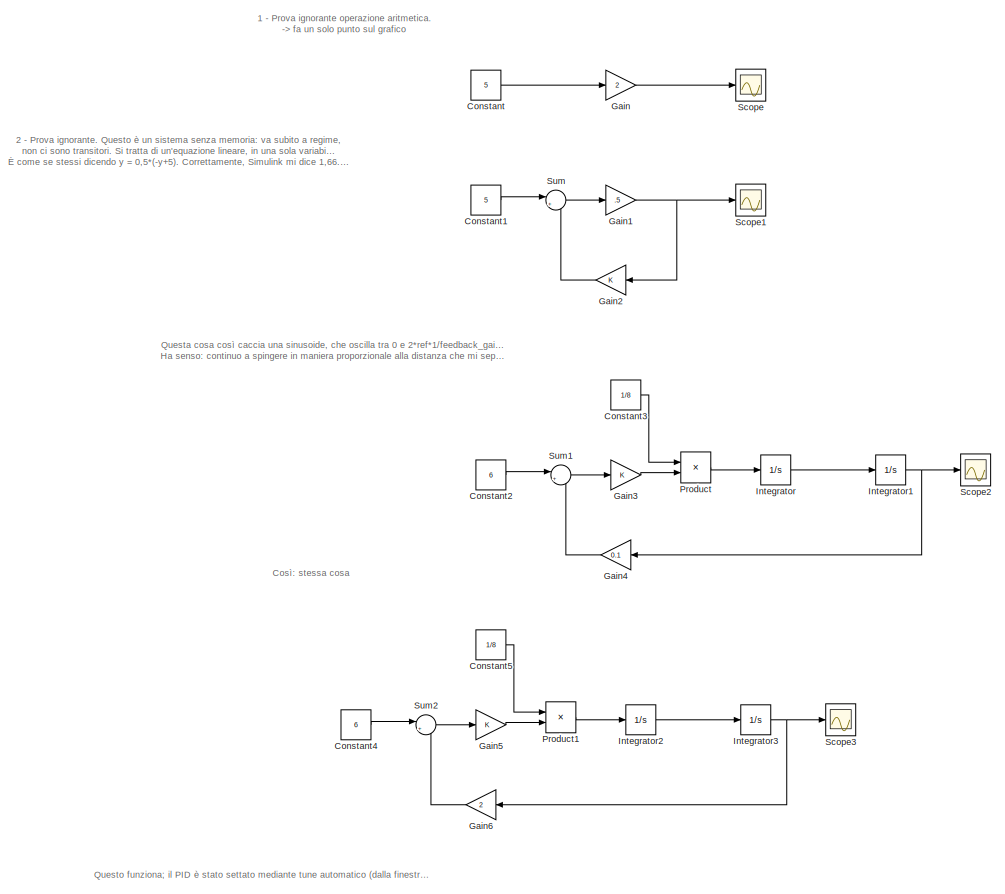
[diagram: root canvas - part 1/17, top center region]
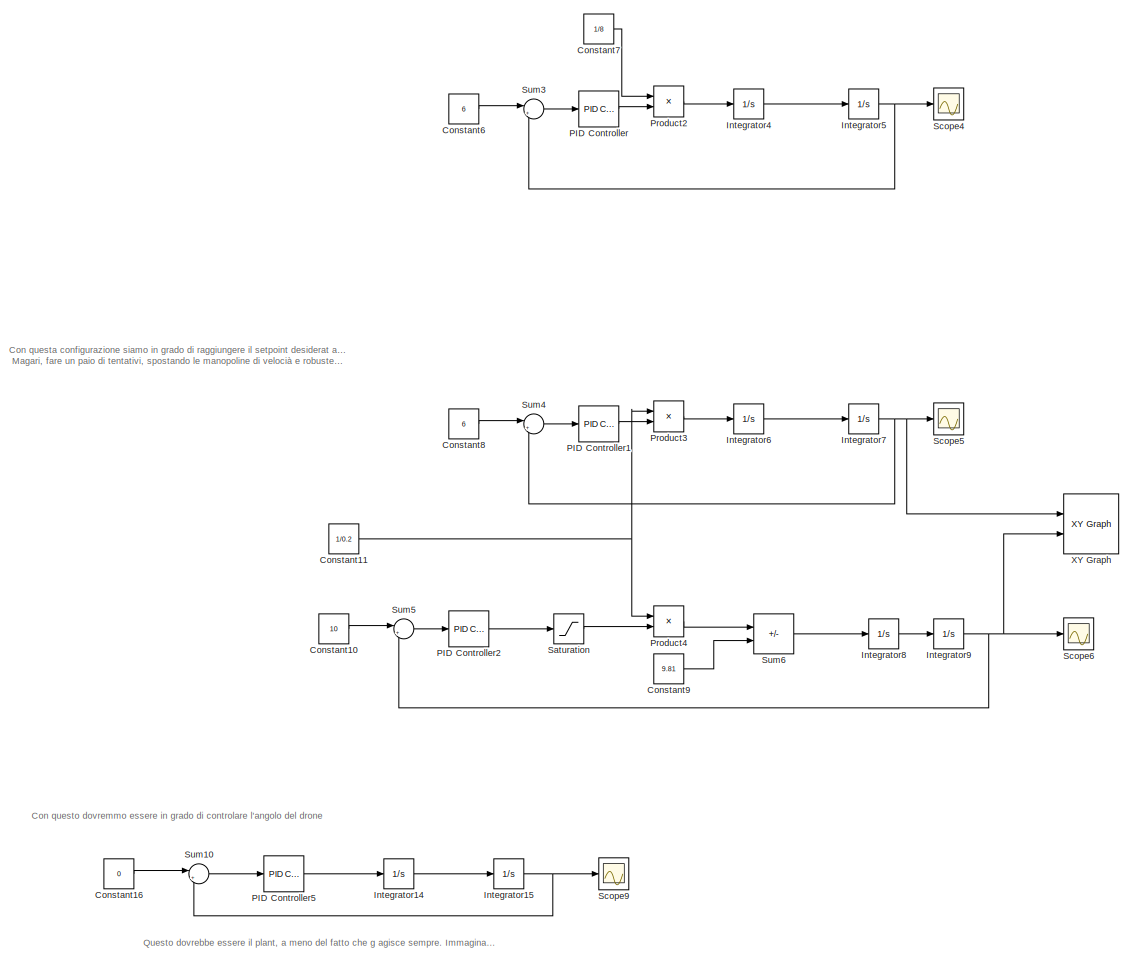
[diagram: root canvas - part 2/17, top center region]
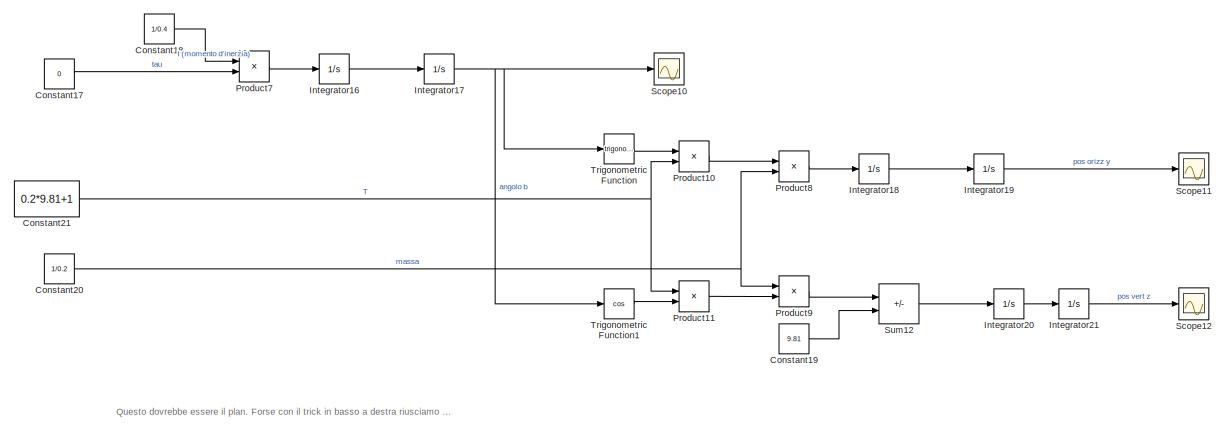
[diagram: root canvas - part 3/17, top center region]
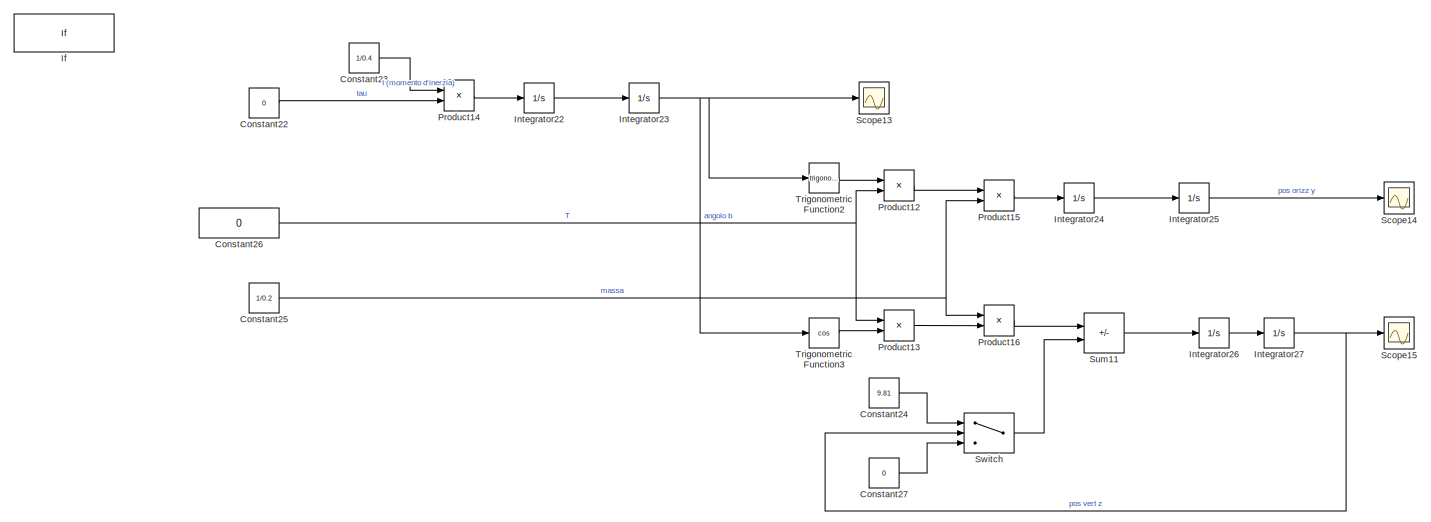
[diagram: root canvas - part 4/17, central region]
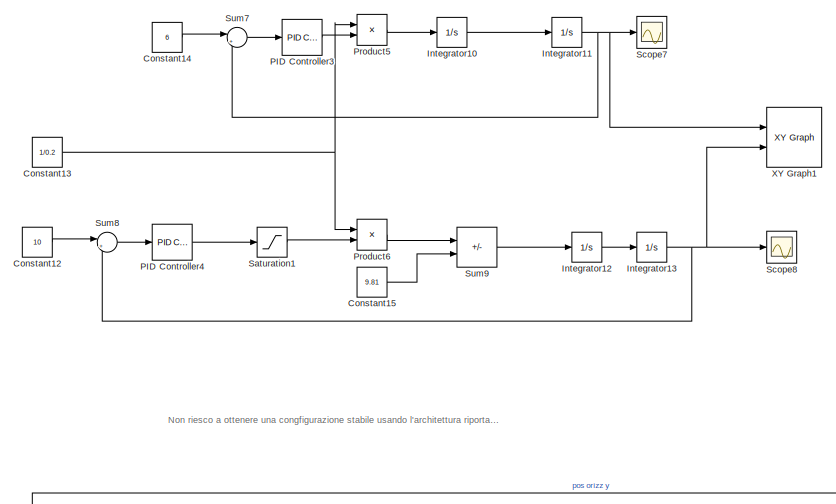
[diagram: root canvas - part 5/17, central region]
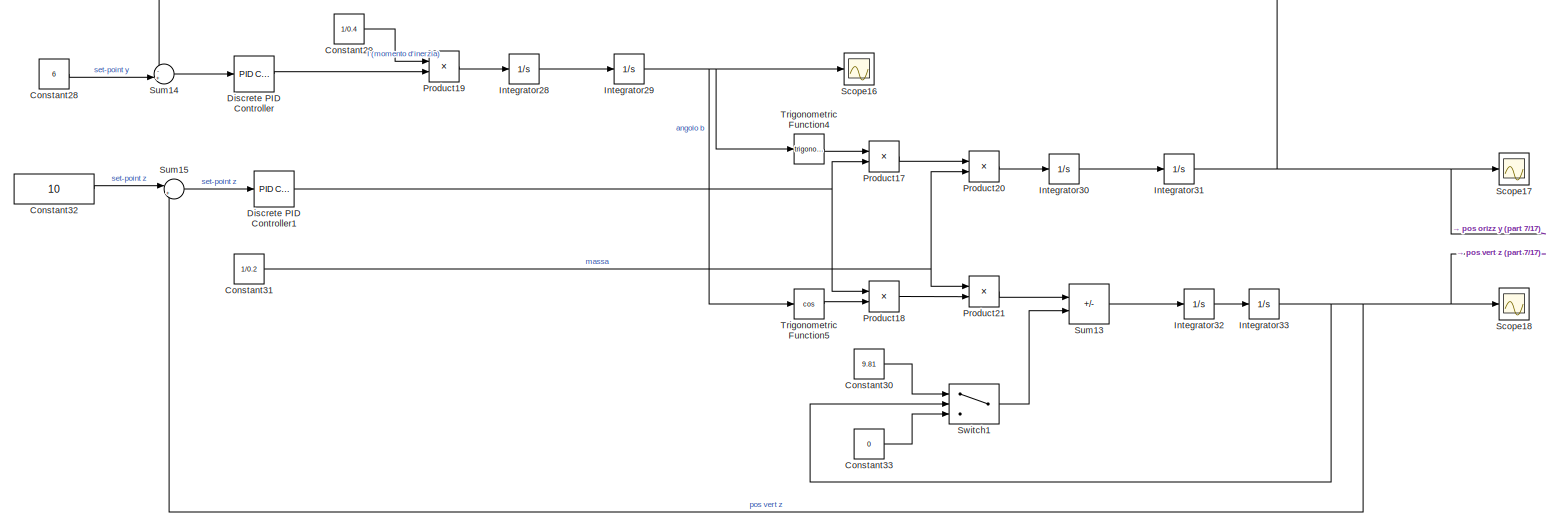
[diagram: root canvas - part 6/17, full width, middle band]
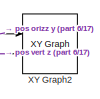
[diagram: root canvas - part 7/17, middle right region]
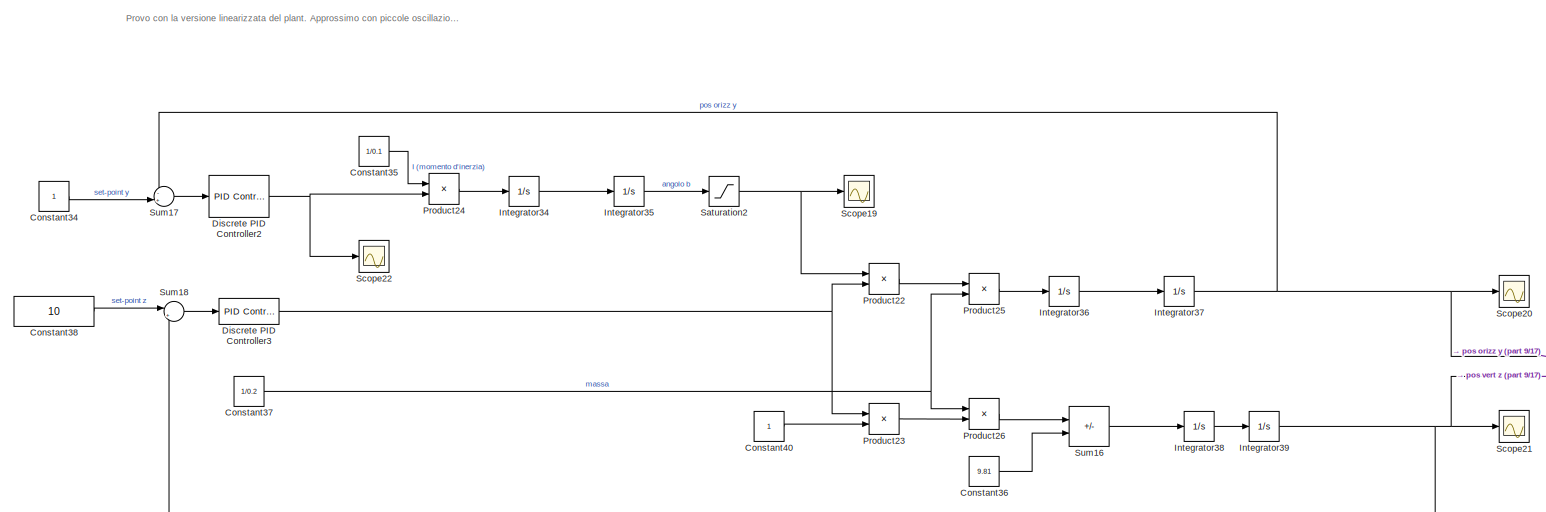
[diagram: root canvas - part 8/17, full width, middle band]
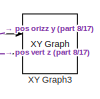
[diagram: root canvas - part 9/17, middle right region]
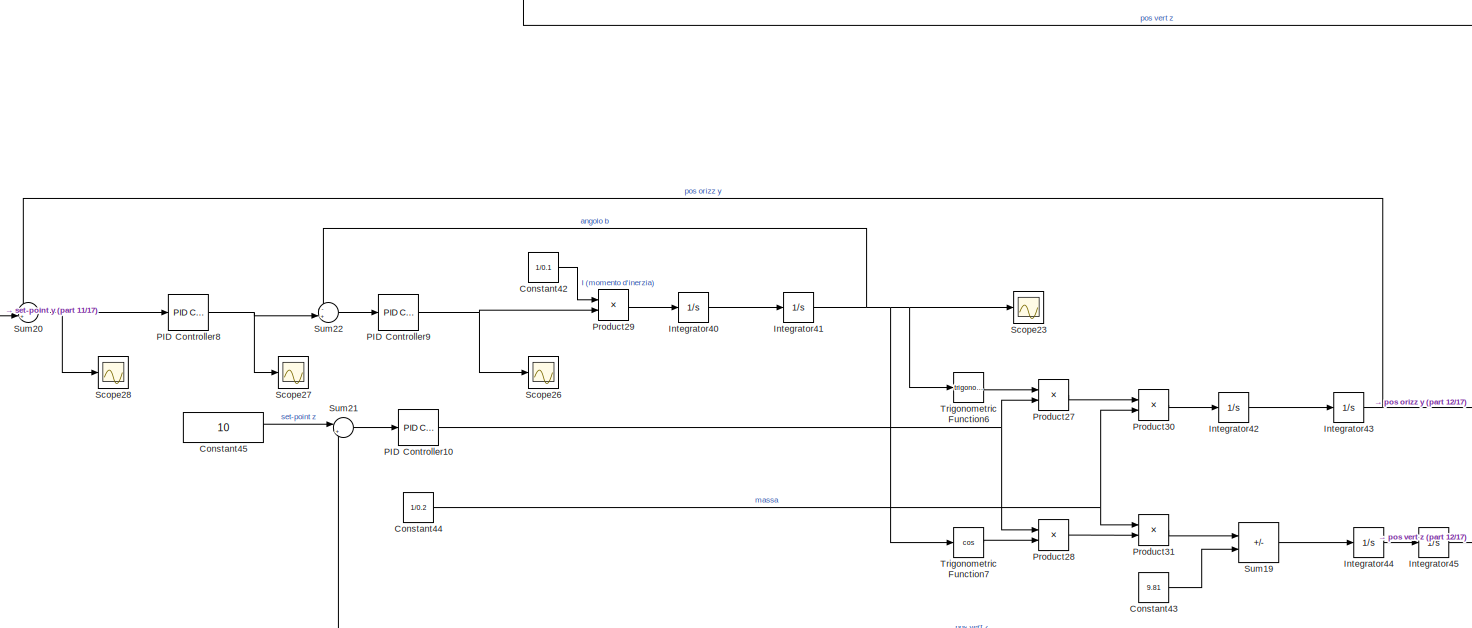
[diagram: root canvas - part 10/17, bottom center region]
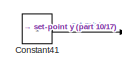
[diagram: root canvas - part 11/17, bottom left region]
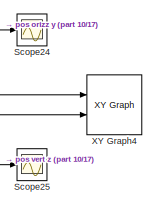
[diagram: root canvas - part 12/17, bottom right region]
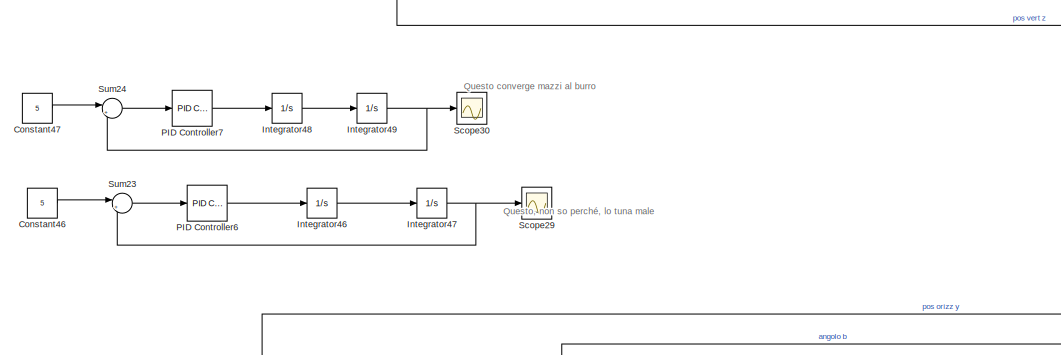
[diagram: root canvas - part 13/17, bottom left region]
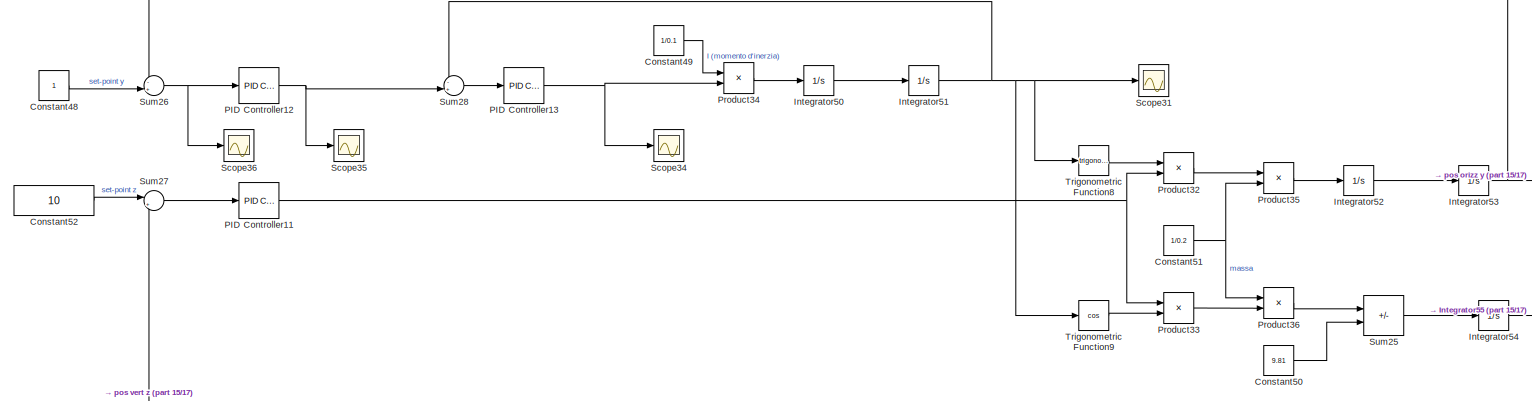
[diagram: root canvas - part 14/17, full width, bottom band]
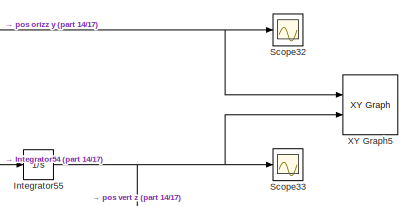
[diagram: root canvas - part 15/17, bottom right region]
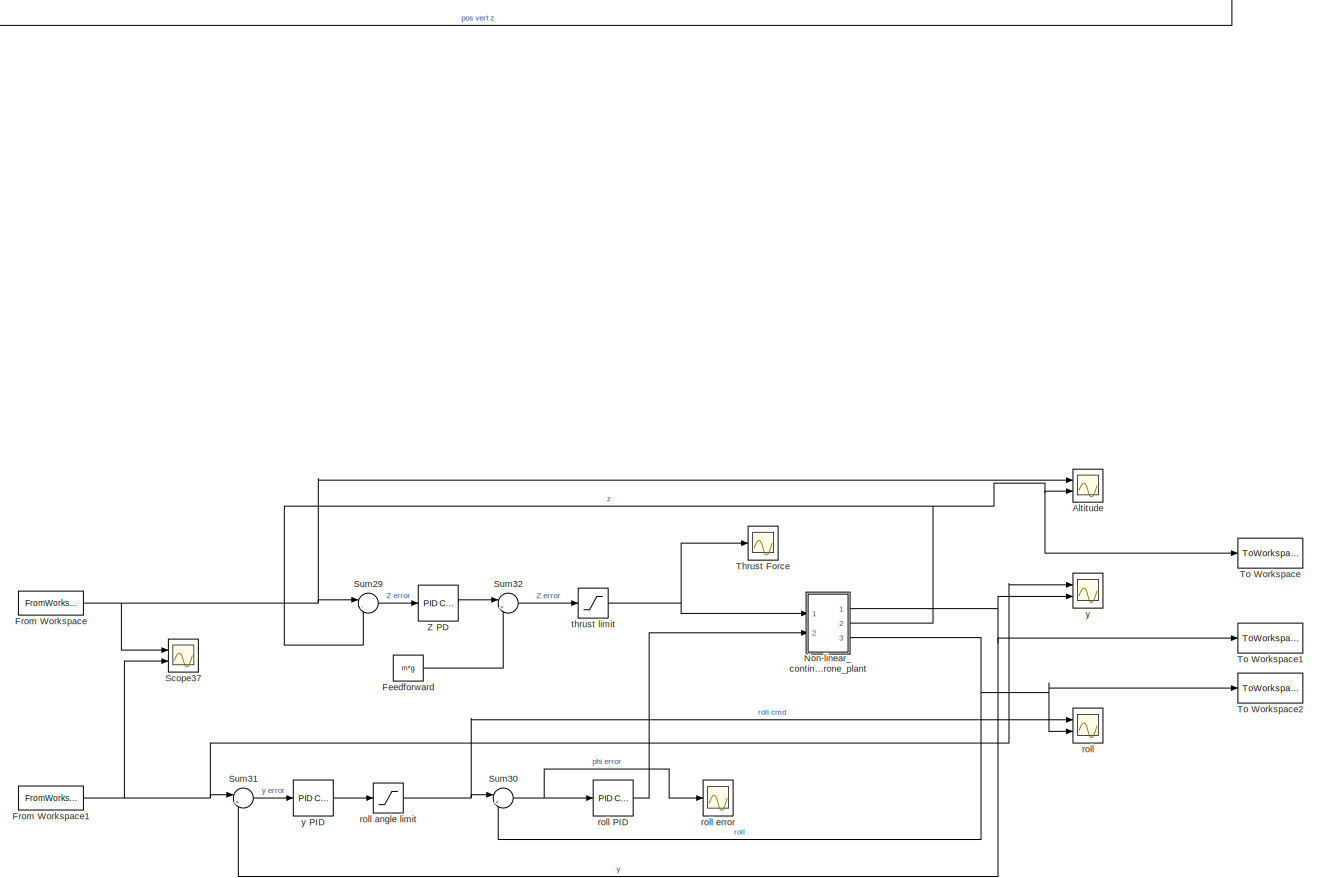
[diagram: root canvas - part 16/17, bottom center region]
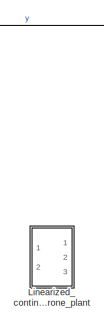
[diagram: root canvas - part 17/17, bottom center region]
MODEL slx_c0baea25a0ae
KIND model
CONFIG AbsTol = auto
CONFIG EnableMultiTasking = off
CONFIG FixedStep = 0.01
CONFIG MaxStep = auto
CONFIG MinStep = auto
CONFIG RelTol = 1e-3
CONFIG SampleTimeConstraint = Unconstrained
CONFIG Solver = FixedStepAuto
CONFIG SolverName = FixedStepAuto
CONFIG StartTime = 0.0
CONFIG StopTime = 100
BLOCK [Scope] Altitude
  Floating = off
  NumInputPorts = 2
  Ports = [2]
  ScopeSpecificationString = Simulink.scopes.TimeScopeBlockCfg('CurrentConfiguration', extmgr.ConfigurationSet(extmgr.Configuration('Core','General UI',true),extmgr.Configuration('Core','Source UI',true),extmgr.Configuration('Sources','WiredSimulink',true,'DataLoggingVariableName','ScopeData10'),extmgr.Configuration('Visuals','Time Domain',true,'SerializedDisplays',{struct('MinYLimReal','-11.51801','MaxYLimReal','1.27978','YL...<+1441ch>
BLOCK [Constant] Constant
  Commented = on
  Value = 5
BLOCK [Constant] Constant1
  Commented = on
  Value = 5
BLOCK [Constant] Constant10
  Commented = on
  Value = 10
BLOCK [Constant] Constant11
  Commented = on
  Value = 1/0.2
BLOCK [Constant] Constant12
  Commented = on
  Value = 10
BLOCK [Constant] Constant13
  Commented = on
  Value = 1/0.2
BLOCK [Constant] Constant14
  Commented = on
  Value = 6
BLOCK [Constant] Constant15
  Commented = on
  Value = 9.81
BLOCK [Constant] Constant16
  Commented = on
  Value = 0
BLOCK [Constant] Constant17
  Commented = on
  Value = 0
BLOCK [Constant] Constant18
  Commented = on
  Value = 1/0.4
BLOCK [Constant] Constant19
  Commented = on
  Value = 9.81
BLOCK [Constant] Constant2
  Commented = on
  Value = 6
BLOCK [Constant] Constant20
  Commented = on
  Value = 1/0.2
BLOCK [Constant] Constant21
  Commented = on
  Value = 0.2*9.81+1
BLOCK [Constant] Constant22
  Commented = on
  Value = 0
BLOCK [Constant] Constant23
  Commented = on
  Value = 1/0.4
BLOCK [Constant] Constant24
  Commented = on
  Value = 9.81
BLOCK [Constant] Constant25
  Commented = on
  Value = 1/0.2
BLOCK [Constant] Constant26
  Commented = on
  Value = 0
BLOCK [Constant] Constant27
  Commented = on
  Value = 0
BLOCK [Constant] Constant28
  Commented = on
  Value = 6
BLOCK [Constant] Constant29
  Commented = on
  Value = 1/0.4
BLOCK [Constant] Constant3
  Commented = on
  Value = 1/8
BLOCK [Constant] Constant30
  Commented = on
  Value = 9.81
BLOCK [Constant] Constant31
  Commented = on
  Value = 1/0.2
BLOCK [Constant] Constant32
  Commented = on
  Value = 10
BLOCK [Constant] Constant33
  Commented = on
  Value = 0
BLOCK [Constant] Constant34
  Commented = on
BLOCK [Constant] Constant35
  Commented = on
  Value = 1/0.1
BLOCK [Constant] Constant36
  Commented = on
  Value = 9.81
BLOCK [Constant] Constant37
  Commented = on
  Value = 1/0.2
BLOCK [Constant] Constant38
  Commented = on
  Value = 10
BLOCK [Constant] Constant4
  Commented = on
  Value = 6
BLOCK [Constant] Constant40
  Commented = on
BLOCK [Constant] Constant41
  Commented = on
BLOCK [Constant] Constant42
  Commented = on
  Value = 1/0.1
BLOCK [Constant] Constant43
  Commented = on
  Value = 9.81
BLOCK [Constant] Constant44
  Commented = on
  Value = 1/0.2
BLOCK [Constant] Constant45
  Commented = on
  Value = 10
BLOCK [Constant] Constant46
  Commented = on
  Value = 5
BLOCK [Constant] Constant47
  Commented = on
  Value = 5
BLOCK [Constant] Constant48
  Commented = on
BLOCK [Constant] Constant49
  Commented = on
  Value = 1/0.1
BLOCK [Constant] Constant5
  Commented = on
  Value = 1/8
BLOCK [Constant] Constant50
  Commented = on
  Value = 9.81
BLOCK [Constant] Constant51
  Commented = on
  Value = 1/0.2
BLOCK [Constant] Constant52
  Commented = on
  Value = 10
BLOCK [Constant] Constant6
  Commented = on
  Value = 6
BLOCK [Constant] Constant7
  Commented = on
  Value = 1/8
BLOCK [Constant] Constant8
  Commented = on
  Value = 6
BLOCK [Constant] Constant9
  Commented = on
  Value = 9.81
BLOCK [Reference] Discrete PID Controller  REF=simulink/Continuous/PID Controller
  Commented = on
  Ports = [1, 1]
  SourceBlock = simulink/Continuous/PID Controller
  SourceProductBaseCode = SL
  SourceType = PID 1dof
BLOCK [Reference] Discrete PID Controller1  REF=simulink/Continuous/PID Controller
  Commented = on
  Ports = [1, 1]
  SourceBlock = simulink/Continuous/PID Controller
  SourceProductBaseCode = SL
  SourceType = PID 1dof
BLOCK [Reference] Discrete PID Controller2  REF=simulink/Continuous/PID Controller
  Commented = on
  Ports = [1, 1]
  SourceBlock = simulink/Continuous/PID Controller
  SourceProductBaseCode = SL
  SourceType = PID 1dof
BLOCK [Reference] Discrete PID Controller3  REF=simulink/Continuous/PID Controller
  Commented = on
  Ports = [1, 1]
  SourceBlock = simulink/Continuous/PID Controller
  SourceProductBaseCode = SL
  SourceType = PID 1dof
BLOCK [Constant] Feedforward
  Value = m*g
BLOCK [FromWorkspace] From Workspace
  SampleTime = ts
  VariableName = Zcmd
BLOCK [FromWorkspace] From Workspace1
  SampleTime = ts
  VariableName = Ycmd
BLOCK [Gain] Gain
  Commented = on
  Gain = 2
BLOCK [Gain] Gain1
  Commented = on
  Gain = .5
BLOCK [Gain] Gain2
  Commented = on
  NameLocation = top
BLOCK [Gain] Gain3
  Commented = on
BLOCK [Gain] Gain4
  Commented = on
  Gain = 0.1
  NameLocation = top
BLOCK [Gain] Gain5
  Commented = on
BLOCK [Gain] Gain6
  Commented = on
  Gain = 2
  NameLocation = top
BLOCK [If] If
  Commented = on
  Ports = [1, 2]
BLOCK [Integrator] Integrator
  Commented = on
  Ports = [1, 1]
BLOCK [Integrator] Integrator1
  Commented = on
  Ports = [1, 1]
BLOCK [Integrator] Integrator10
  Commented = on
  Ports = [1, 1]
BLOCK [Integrator] Integrator11
  Commented = on
  Ports = [1, 1]
BLOCK [Integrator] Integrator12
  Commented = on
  Ports = [1, 1]
BLOCK [Integrator] Integrator13
  Commented = on
  Ports = [1, 1]
BLOCK [Integrator] Integrator14
  Commented = on
  Ports = [1, 1]
BLOCK [Integrator] Integrator15
  Commented = on
  Ports = [1, 1]
BLOCK [Integrator] Integrator16
  Commented = on
  Ports = [1, 1]
BLOCK [Integrator] Integrator17
  Commented = on
  Ports = [1, 1]
BLOCK [Integrator] Integrator18
  Commented = on
  Ports = [1, 1]
BLOCK [Integrator] Integrator19
  Commented = on
  Ports = [1, 1]
BLOCK [Integrator] Integrator2
  Commented = on
  Ports = [1, 1]
BLOCK [Integrator] Integrator20
  Commented = on
  Ports = [1, 1]
BLOCK [Integrator] Integrator21
  Commented = on
  Ports = [1, 1]
BLOCK [Integrator] Integrator22
  Commented = on
  Ports = [1, 1]
BLOCK [Integrator] Integrator23
  Commented = on
  Ports = [1, 1]
BLOCK [Integrator] Integrator24
  Commented = on
  Ports = [1, 1]
BLOCK [Integrator] Integrator25
  Commented = on
  Ports = [1, 1]
BLOCK [Integrator] Integrator26
  Commented = on
  Ports = [1, 1]
BLOCK [Integrator] Integrator27
  Commented = on
  Ports = [1, 1]
BLOCK [Integrator] Integrator28
  Commented = on
  Ports = [1, 1]
BLOCK [Integrator] Integrator29
  Commented = on
  Ports = [1, 1]
BLOCK [Integrator] Integrator3
  Commented = on
  Ports = [1, 1]
BLOCK [Integrator] Integrator30
  Commented = on
  Ports = [1, 1]
BLOCK [Integrator] Integrator31
  Commented = on
  Ports = [1, 1]
BLOCK [Integrator] Integrator32
  Commented = on
  Ports = [1, 1]
BLOCK [Integrator] Integrator33
  Commented = on
  Ports = [1, 1]
BLOCK [Integrator] Integrator34
  Commented = on
  Ports = [1, 1]
BLOCK [Integrator] Integrator35
  Commented = on
  Ports = [1, 1]
BLOCK [Integrator] Integrator36
  Commented = on
  Ports = [1, 1]
BLOCK [Integrator] Integrator37
  Commented = on
  Ports = [1, 1]
BLOCK [Integrator] Integrator38
  Commented = on
  Ports = [1, 1]
BLOCK [Integrator] Integrator39
  Commented = on
  Ports = [1, 1]
BLOCK [Integrator] Integrator4
  Commented = on
  Ports = [1, 1]
BLOCK [Integrator] Integrator40
  Commented = on
  Ports = [1, 1]
BLOCK [Integrator] Integrator41
  Commented = on
  Ports = [1, 1]
BLOCK [Integrator] Integrator42
  Commented = on
  Ports = [1, 1]
BLOCK [Integrator] Integrator43
  Commented = on
  Ports = [1, 1]
BLOCK [Integrator] Integrator44
  Commented = on
  Ports = [1, 1]
BLOCK [Integrator] Integrator45
  Commented = on
  Ports = [1, 1]
BLOCK [Integrator] Integrator46
  Commented = on
  Ports = [1, 1]
BLOCK [Integrator] Integrator47
  Commented = on
  Ports = [1, 1]
BLOCK [Integrator] Integrator48
  Commented = on
  Ports = [1, 1]
BLOCK [Integrator] Integrator49
  Commented = on
  Ports = [1, 1]
BLOCK [Integrator] Integrator5
  Commented = on
  Ports = [1, 1]
BLOCK [Integrator] Integrator50
  Commented = on
  Ports = [1, 1]
BLOCK [Integrator] Integrator51
  Commented = on
  Ports = [1, 1]
BLOCK [Integrator] Integrator52
  Commented = on
  Ports = [1, 1]
BLOCK [Integrator] Integrator53
  Commented = on
  Ports = [1, 1]
BLOCK [Integrator] Integrator54
  Commented = on
  Ports = [1, 1]
BLOCK [Integrator] Integrator55
  Commented = on
  Ports = [1, 1]
BLOCK [Integrator] Integrator6
  Commented = on
  Ports = [1, 1]
BLOCK [Integrator] Integrator7
  Commented = on
  Ports = [1, 1]
BLOCK [Integrator] Integrator8
  Commented = on
  Ports = [1, 1]
BLOCK [Integrator] Integrator9
  Commented = on
  Ports = [1, 1]
BLOCK [SubSystem] Linearized_continuous_drone_plant
  Ports = [2, 3]
  ReferencedSubsystem = Linearized_continuous_drone_plant
  RequestExecContextInheritance = off
BLOCK [SubSystem] Non-linear_continuous_drone_plant
  Ports = [2, 3]
  ReferencedSubsystem = Non_linear_continuous_drone_plant
  RequestExecContextInheritance = off
BLOCK [Reference] PID Controller  REF=simulink/Continuous/PID Controller
  Commented = on
  Ports = [1, 1]
  SourceBlock = simulink/Continuous/PID Controller
  SourceProductBaseCode = SL
  SourceType = PID 1dof
BLOCK [Reference] PID Controller1  REF=simulink/Continuous/PID Controller
  Commented = on
  Ports = [1, 1]
  SourceBlock = simulink/Continuous/PID Controller
  SourceProductBaseCode = SL
  SourceType = PID 1dof
BLOCK [Reference] PID Controller10  REF=simulink/Continuous/PID Controller
  Commented = on
  Ports = [1, 1]
  SourceBlock = simulink/Continuous/PID Controller
  SourceProductBaseCode = SL
  SourceType = PID 1dof
BLOCK [Reference] PID Controller11  REF=simulink/Continuous/PID Controller
  Commented = on
  Ports = [1, 1]
  SourceBlock = simulink/Continuous/PID Controller
  SourceProductBaseCode = SL
  SourceType = PID 1dof
BLOCK [Reference] PID Controller12  REF=simulink/Continuous/PID Controller
  Commented = on
  Ports = [1, 1]
  SourceBlock = simulink/Continuous/PID Controller
  SourceProductBaseCode = SL
  SourceType = PID 1dof
BLOCK [Reference] PID Controller13  REF=simulink/Continuous/PID Controller
  Commented = on
  Ports = [1, 1]
  SourceBlock = simulink/Continuous/PID Controller
  SourceProductBaseCode = SL
  SourceType = PID 1dof
BLOCK [Reference] PID Controller2  REF=simulink/Continuous/PID Controller
  Commented = on
  Ports = [1, 1]
  SourceBlock = simulink/Continuous/PID Controller
  SourceProductBaseCode = SL
  SourceType = PID 1dof
BLOCK [Reference] PID Controller3  REF=simulink/Continuous/PID Controller
  Commented = on
  Ports = [1, 1]
  SourceBlock = simulink/Continuous/PID Controller
  SourceProductBaseCode = SL
  SourceType = PID 1dof
BLOCK [Reference] PID Controller4  REF=simulink/Continuous/PID Controller
  Commented = on
  Ports = [1, 1]
  SourceBlock = simulink/Continuous/PID Controller
  SourceProductBaseCode = SL
  SourceType = PID 1dof
BLOCK [Reference] PID Controller5  REF=simulink/Continuous/PID Controller
  Commented = on
  Ports = [1, 1]
  SourceBlock = simulink/Continuous/PID Controller
  SourceProductBaseCode = SL
  SourceType = PID 1dof
BLOCK [Reference] PID Controller6  REF=simulink/Continuous/PID Controller
  Commented = on
  Ports = [1, 1]
  SourceBlock = simulink/Continuous/PID Controller
  SourceProductBaseCode = SL
  SourceType = PID 1dof
BLOCK [Reference] PID Controller7  REF=simulink/Continuous/PID Controller
  Commented = on
  Ports = [1, 1]
  SourceBlock = simulink/Continuous/PID Controller
  SourceProductBaseCode = SL
  SourceType = PID 1dof
BLOCK [Reference] PID Controller8  REF=simulink/Continuous/PID Controller
  Commented = on
  Ports = [1, 1]
  SourceBlock = simulink/Continuous/PID Controller
  SourceProductBaseCode = SL
  SourceType = PID 1dof
BLOCK [Reference] PID Controller9  REF=simulink/Continuous/PID Controller
  Commented = on
  Ports = [1, 1]
  SourceBlock = simulink/Continuous/PID Controller
  SourceProductBaseCode = SL
  SourceType = PID 1dof
BLOCK [Product] Product
  Commented = on
  Ports = [2, 1]
BLOCK [Product] Product1
  Commented = on
  Ports = [2, 1]
BLOCK [Product] Product10
  Commented = on
  Ports = [2, 1]
BLOCK [Product] Product11
  Commented = on
  Ports = [2, 1]
BLOCK [Product] Product12
  Commented = on
  Ports = [2, 1]
BLOCK [Product] Product13
  Commented = on
  Ports = [2, 1]
BLOCK [Product] Product14
  Commented = on
  Ports = [2, 1]
BLOCK [Product] Product15
  Commented = on
  Ports = [2, 1]
BLOCK [Product] Product16
  Commented = on
  Ports = [2, 1]
BLOCK [Product] Product17
  Commented = on
  Ports = [2, 1]
BLOCK [Product] Product18
  Commented = on
  Ports = [2, 1]
BLOCK [Product] Product19
  Commented = on
  Ports = [2, 1]
BLOCK [Product] Product2
  Commented = on
  Ports = [2, 1]
BLOCK [Product] Product20
  Commented = on
  Ports = [2, 1]
BLOCK [Product] Product21
  Commented = on
  Ports = [2, 1]
BLOCK [Product] Product22
  Commented = on
  Ports = [2, 1]
BLOCK [Product] Product23
  Commented = on
  Ports = [2, 1]
BLOCK [Product] Product24
  Commented = on
  Ports = [2, 1]
BLOCK [Product] Product25
  Commented = on
  Ports = [2, 1]
BLOCK [Product] Product26
  Commented = on
  Ports = [2, 1]
BLOCK [Product] Product27
  Commented = on
  Ports = [2, 1]
BLOCK [Product] Product28
  Commented = on
  Ports = [2, 1]
BLOCK [Product] Product29
  Commented = on
  Ports = [2, 1]
BLOCK [Product] Product3
  Commented = on
  Ports = [2, 1]
BLOCK [Product] Product30
  Commented = on
  Ports = [2, 1]
BLOCK [Product] Product31
  Commented = on
  Ports = [2, 1]
BLOCK [Product] Product32
  Commented = on
  Ports = [2, 1]
BLOCK [Product] Product33
  Commented = on
  Ports = [2, 1]
BLOCK [Product] Product34
  Commented = on
  Ports = [2, 1]
BLOCK [Product] Product35
  Commented = on
  Ports = [2, 1]
BLOCK [Product] Product36
  Commented = on
  Ports = [2, 1]
BLOCK [Product] Product4
  Commented = on
  Ports = [2, 1]
BLOCK [Product] Product5
  Commented = on
  Ports = [2, 1]
BLOCK [Product] Product6
  Commented = on
  Ports = [2, 1]
BLOCK [Product] Product7
  Commented = on
  Ports = [2, 1]
BLOCK [Product] Product8
  Commented = on
  Ports = [2, 1]
BLOCK [Product] Product9
  Commented = on
  Ports = [2, 1]
BLOCK [Saturate] Saturation
  Commented = on
  LowerLimit = -100
  UpperLimit = 100
BLOCK [Saturate] Saturation1
  Commented = on
  LowerLimit = -100
  UpperLimit = 100
BLOCK [Saturate] Saturation2
  Commented = on
  LowerLimit = -0.2
  UpperLimit = 0.2
BLOCK [Scope] Scope
  Commented = on
  Floating = off
  NumInputPorts = 1
  Ports = [1]
  ScopeSpecificationString = Simulink.scopes.TimeScopeBlockCfg('CurrentConfiguration', extmgr.ConfigurationSet(extmgr.Configuration('Core','General UI',true),extmgr.Configuration('Core','Source UI',true),extmgr.Configuration('Sources','WiredSimulink',true,'DataLoggingSaveFormat','Array','DataLoggingLimitDataPoints',true,'DataLoggingDecimation','1'),extmgr.Configuration('Visuals','Time Domain',true,'SerializedDisplays',{struct...<+1644ch>
BLOCK [Scope] Scope1
  Commented = on
  Floating = off
  NumInputPorts = 1
  Ports = [1]
  ScopeSpecificationString = Simulink.scopes.TimeScopeBlockCfg('CurrentConfiguration', extmgr.ConfigurationSet(extmgr.Configuration('Core','General UI',true),extmgr.Configuration('Core','Source UI',true),extmgr.Configuration('Sources','WiredSimulink',true,'DataLoggingSaveFormat','Array','DataLoggingLimitDataPoints',true,'DataLoggingDecimation','1','DataLoggingVariableName','ScopeData1'),extmgr.Configuration('Visuals','Time Do...<+1680ch>
BLOCK [Scope] Scope10
  Commented = on
  Floating = off
  NumInputPorts = 1
  Ports = [1]
  ScopeSpecificationString = Simulink.scopes.TimeScopeBlockCfg('CurrentConfiguration', extmgr.ConfigurationSet(extmgr.Configuration('Core','General UI',true),extmgr.Configuration('Core','Source UI',true),extmgr.Configuration('Sources','WiredSimulink',true,'DataLoggingVariableName','ScopeData10'),extmgr.Configuration('Visuals','Time Domain',true,'SerializedDisplays',{struct('MinYLimReal','-1.00000','MaxYLimReal','1.00000','YLa...<+1398ch>
BLOCK [Scope] Scope11
  Commented = on
  Floating = off
  NumInputPorts = 1
  Ports = [1]
  ScopeSpecificationString = Simulink.scopes.TimeScopeBlockCfg('CurrentConfiguration', extmgr.ConfigurationSet(extmgr.Configuration('Core','General UI',true),extmgr.Configuration('Core','Source UI',true),extmgr.Configuration('Sources','WiredSimulink',true,'DataLoggingVariableName','ScopeData11'),extmgr.Configuration('Visuals','Time Domain',true,'SerializedDisplays',{struct('MinYLimReal','-1.00000','MaxYLimReal','1.00000','YLa...<+1371ch>
BLOCK [Scope] Scope12
  Commented = on
  Floating = off
  NumInputPorts = 1
  Ports = [1]
  ScopeSpecificationString = Simulink.scopes.TimeScopeBlockCfg('CurrentConfiguration', extmgr.ConfigurationSet(extmgr.Configuration('Core','General UI',true),extmgr.Configuration('Core','Source UI',true),extmgr.Configuration('Sources','WiredSimulink',true,'DataLoggingVariableName','ScopeData12'),extmgr.Configuration('Visuals','Time Domain',true,'SerializedDisplays',{struct('MinYLimReal','-3125.00000','MaxYLimReal','28125.0000...<+1396ch>
BLOCK [Scope] Scope13
  Commented = on
  Floating = off
  NumInputPorts = 1
  Ports = [1]
  ScopeSpecificationString = Simulink.scopes.TimeScopeBlockCfg('CurrentConfiguration', extmgr.ConfigurationSet(extmgr.Configuration('Core','General UI',true),extmgr.Configuration('Core','Source UI',true),extmgr.Configuration('Sources','WiredSimulink',true,'DataLoggingVariableName','ScopeData13'),extmgr.Configuration('Visuals','Time Domain',true,'SerializedDisplays',{struct('MinYLimReal','-1.00000','MaxYLimReal','1.00000','YLa...<+1401ch>
BLOCK [Scope] Scope14
  Commented = on
  Floating = off
  NumInputPorts = 1
  Ports = [1]
  ScopeSpecificationString = Simulink.scopes.TimeScopeBlockCfg('CurrentConfiguration', extmgr.ConfigurationSet(extmgr.Configuration('Core','General UI',true),extmgr.Configuration('Core','Source UI',true),extmgr.Configuration('Sources','WiredSimulink',true,'DataLoggingVariableName','ScopeData14'),extmgr.Configuration('Visuals','Time Domain',true,'SerializedDisplays',{struct('MinYLimReal','-1.00000','MaxYLimReal','1.00000','YLa...<+1398ch>
BLOCK [Scope] Scope15
  Commented = on
  Floating = off
  NumInputPorts = 1
  Ports = [1]
  ScopeSpecificationString = Simulink.scopes.TimeScopeBlockCfg('CurrentConfiguration', extmgr.ConfigurationSet(extmgr.Configuration('Core','General UI',true),extmgr.Configuration('Core','Source UI',true),extmgr.Configuration('Sources','WiredSimulink',true,'DataLoggingVariableName','ScopeData15'),extmgr.Configuration('Visuals','Time Domain',true,'SerializedDisplays',{struct('MinYLimReal','-1.00000','MaxYLimReal','1.00000','YLa...<+1370ch>
BLOCK [Scope] Scope16
  Commented = on
  Floating = off
  NumInputPorts = 1
  Ports = [1]
  ScopeSpecificationString = Simulink.scopes.TimeScopeBlockCfg('CurrentConfiguration', extmgr.ConfigurationSet(extmgr.Configuration('Core','General UI',true),extmgr.Configuration('Core','Source UI',true),extmgr.Configuration('Sources','WiredSimulink',true,'DataLoggingVariableName','ScopeData16'),extmgr.Configuration('Visuals','Time Domain',true,'SerializedDisplays',{struct('MinYLimReal','-1.00000','MaxYLimReal','1.00000','YLa...<+1401ch>
BLOCK [Scope] Scope17
  Commented = on
  Floating = off
  NumInputPorts = 1
  Ports = [1]
  ScopeSpecificationString = Simulink.scopes.TimeScopeBlockCfg('CurrentConfiguration', extmgr.ConfigurationSet(extmgr.Configuration('Core','General UI',true),extmgr.Configuration('Core','Source UI',true),extmgr.Configuration('Sources','WiredSimulink',true,'DataLoggingVariableName','ScopeData17'),extmgr.Configuration('Visuals','Time Domain',true,'SerializedDisplays',{struct('MinYLimReal','-934.2671','MaxYLimReal','6339.94783',...<+1420ch>
BLOCK [Scope] Scope18
  Commented = on
  Floating = off
  NumInputPorts = 1
  Ports = [1]
  ScopeSpecificationString = Simulink.scopes.TimeScopeBlockCfg('CurrentConfiguration', extmgr.ConfigurationSet(extmgr.Configuration('Core','General UI',true),extmgr.Configuration('Core','Source UI',true),extmgr.Configuration('Sources','WiredSimulink',true,'DataLoggingVariableName','ScopeData18'),extmgr.Configuration('Visuals','Time Domain',true,'SerializedDisplays',{struct('MinYLimReal','-1051.40568','MaxYLimReal','119.90924'...<+1422ch>
BLOCK [Scope] Scope19
  Commented = on
  Floating = off
  NumInputPorts = 1
  Ports = [1]
  ScopeSpecificationString = Simulink.scopes.TimeScopeBlockCfg('CurrentConfiguration', extmgr.ConfigurationSet(extmgr.Configuration('Core','General UI',true),extmgr.Configuration('Core','Source UI',true),extmgr.Configuration('Sources','WiredSimulink',true,'DataLoggingVariableName','ScopeData19'),extmgr.Configuration('Visuals','Time Domain',true,'SerializedDisplays',{struct('MinYLimReal','-0.25','MaxYLimReal','0.25','YLabelRea...<+1387ch>
BLOCK [Scope] Scope2
  Commented = on
  Floating = off
  NumInputPorts = 1
  Ports = [1]
  ScopeSpecificationString = Simulink.scopes.TimeScopeBlockCfg('CurrentConfiguration', extmgr.ConfigurationSet(extmgr.Configuration('Core','General UI',true),extmgr.Configuration('Core','Source UI',true),extmgr.Configuration('Sources','WiredSimulink',true,'DataLoggingSaveFormat','Array','DataLoggingLimitDataPoints',true,'DataLoggingDecimation','1','DataLoggingVariableName','ScopeData2'),extmgr.Configuration('Visuals','Time Do...<+1698ch>
BLOCK [Scope] Scope20
  Commented = on
  Floating = off
  NumInputPorts = 1
  Ports = [1]
  ScopeSpecificationString = Simulink.scopes.TimeScopeBlockCfg('CurrentConfiguration', extmgr.ConfigurationSet(extmgr.Configuration('Core','General UI',true),extmgr.Configuration('Core','Source UI',true),extmgr.Configuration('Sources','WiredSimulink',true,'DataLoggingVariableName','ScopeData20'),extmgr.Configuration('Visuals','Time Domain',true,'SerializedDisplays',{struct('MinYLimReal','-70737.26895','MaxYLimReal','16629.315...<+1435ch>
BLOCK [Scope] Scope21
  Commented = on
  Floating = off
  NumInputPorts = 1
  Ports = [1]
  ScopeSpecificationString = Simulink.scopes.TimeScopeBlockCfg('CurrentConfiguration', extmgr.ConfigurationSet(extmgr.Configuration('Core','General UI',true),extmgr.Configuration('Core','Source UI',true),extmgr.Configuration('Sources','WiredSimulink',true,'DataLoggingVariableName','ScopeData21'),extmgr.Configuration('Visuals','Time Domain',true,'SerializedDisplays',{struct('MinYLimReal','-37.29589','MaxYLimReal','15.2551','YL...<+1408ch>
BLOCK [Scope] Scope22
  Commented = on
  Floating = off
  NumInputPorts = 1
  Ports = [1]
  ScopeSpecificationString = Simulink.scopes.TimeScopeBlockCfg('CurrentConfiguration', extmgr.ConfigurationSet(extmgr.Configuration('Core','General UI',true),extmgr.Configuration('Core','Source UI',true),extmgr.Configuration('Sources','WiredSimulink',true,'DataLoggingVariableName','ScopeData22'),extmgr.Configuration('Visuals','Time Domain',true,'SerializedDisplays',{struct('MinYLimReal','-0.01828','MaxYLimReal','0.07741','YLa...<+1414ch>
BLOCK [Scope] Scope23
  Commented = on
  Floating = off
  NumInputPorts = 1
  Ports = [1]
  ScopeSpecificationString = Simulink.scopes.TimeScopeBlockCfg('CurrentConfiguration', extmgr.ConfigurationSet(extmgr.Configuration('Core','General UI',true),extmgr.Configuration('Core','Source UI',true),extmgr.Configuration('Sources','WiredSimulink',true,'DataLoggingVariableName','ScopeData23'),extmgr.Configuration('Visuals','Time Domain',true,'SerializedDisplays',{struct('MinYLimReal','-0.07409','MaxYLimReal','0.66683','YLa...<+1402ch>
BLOCK [Scope] Scope24
  Commented = on
  Floating = off
  NumInputPorts = 1
  Ports = [1]
  ScopeSpecificationString = Simulink.scopes.TimeScopeBlockCfg('CurrentConfiguration', extmgr.ConfigurationSet(extmgr.Configuration('Core','General UI',true),extmgr.Configuration('Core','Source UI',true),extmgr.Configuration('Sources','WiredSimulink',true,'DataLoggingVariableName','ScopeData24'),extmgr.Configuration('Visuals','Time Domain',true,'SerializedDisplays',{struct('MinYLimReal','-3188.13963','MaxYLimReal','28693.2567...<+1778ch>
BLOCK [Scope] Scope25
  Commented = on
  Floating = off
  NumInputPorts = 1
  Ports = [1]
  ScopeSpecificationString = Simulink.scopes.TimeScopeBlockCfg('CurrentConfiguration', extmgr.ConfigurationSet(extmgr.Configuration('Core','General UI',true),extmgr.Configuration('Core','Source UI',true),extmgr.Configuration('Sources','WiredSimulink',true,'DataLoggingVariableName','ScopeData25'),extmgr.Configuration('Visuals','Time Domain',true,'SerializedDisplays',{struct('MinYLimReal','-43.89875','MaxYLimReal','15.83414','Y...<+1410ch>
BLOCK [Scope] Scope26
  Commented = on
  Floating = off
  NumInputPorts = 1
  Ports = [1]
  ScopeSpecificationString = Simulink.scopes.TimeScopeBlockCfg('CurrentConfiguration', extmgr.ConfigurationSet(extmgr.Configuration('Core','General UI',true),extmgr.Configuration('Core','Source UI',true),extmgr.Configuration('Sources','WiredSimulink',true,'DataLoggingVariableName','ScopeData26'),extmgr.Configuration('Visuals','Time Domain',true,'SerializedDisplays',{struct('MinYLimReal','-0.57025','MaxYLimReal','2.70528','YLa...<+1414ch>
BLOCK [Scope] Scope27
  Commented = on
  Floating = off
  NumInputPorts = 1
  Ports = [1]
  ScopeSpecificationString = Simulink.scopes.TimeScopeBlockCfg('CurrentConfiguration', extmgr.ConfigurationSet(extmgr.Configuration('Core','General UI',true),extmgr.Configuration('Core','Source UI',true),extmgr.Configuration('Sources','WiredSimulink',true,'DataLoggingVariableName','ScopeData27'),extmgr.Configuration('Visuals','Time Domain',true,'SerializedDisplays',{struct('MinYLimReal','0.42','MaxYLimReal','0.62','YLabelReal...<+1388ch>
BLOCK [Scope] Scope28
  Commented = on
  Floating = off
  NumInputPorts = 1
  Ports = [1]
  ScopeSpecificationString = Simulink.scopes.TimeScopeBlockCfg('CurrentConfiguration', extmgr.ConfigurationSet(extmgr.Configuration('Core','General UI',true),extmgr.Configuration('Core','Source UI',true),extmgr.Configuration('Sources','WiredSimulink',true,'DataLoggingVariableName','ScopeData1'),extmgr.Configuration('Visuals','Time Domain',true,'SerializedDisplays',{struct('MinYLimReal','-31297.61435','MaxYLimReal','3478.62382...<+1426ch>
BLOCK [Scope] Scope29
  Commented = on
  Floating = off
  NumInputPorts = 1
  Ports = [1]
  ScopeSpecificationString = Simulink.scopes.TimeScopeBlockCfg('CurrentConfiguration', extmgr.ConfigurationSet(extmgr.Configuration('Core','General UI',true),extmgr.Configuration('Core','Source UI',true),extmgr.Configuration('Sources','WiredSimulink',true,'DataLoggingVariableName','ScopeData2'),extmgr.Configuration('Visuals','Time Domain',true,'SerializedDisplays',{struct('MinYLimReal','-22944164062495772189802568199729473944...<+1958ch>
BLOCK [Scope] Scope3
  Commented = on
  Floating = off
  NumInputPorts = 1
  Ports = [1]
  ScopeSpecificationString = Simulink.scopes.TimeScopeBlockCfg('CurrentConfiguration', extmgr.ConfigurationSet(extmgr.Configuration('Core','General UI',true),extmgr.Configuration('Core','Source UI',true),extmgr.Configuration('Sources','WiredSimulink',true,'DataLoggingSaveFormat','Array','DataLoggingLimitDataPoints',true,'DataLoggingDecimation','1','DataLoggingVariableName','ScopeData3'),extmgr.Configuration('Visuals','Time Do...<+1688ch>
BLOCK [Scope] Scope30
  Commented = on
  Floating = off
  NumInputPorts = 1
  Ports = [1]
  ScopeSpecificationString = Simulink.scopes.TimeScopeBlockCfg('CurrentConfiguration', extmgr.ConfigurationSet(extmgr.Configuration('Core','General UI',true),extmgr.Configuration('Core','Source UI',true),extmgr.Configuration('Sources','WiredSimulink',true,'DataLoggingVariableName','ScopeData3'),extmgr.Configuration('Visuals','Time Domain',true,'SerializedDisplays',{struct('MinYLimReal','-0.71243','MaxYLimReal','6.41183','YLab...<+1405ch>
BLOCK [Scope] Scope31
  Commented = on
  Floating = off
  NumInputPorts = 1
  Ports = [1]
  ScopeSpecificationString = Simulink.scopes.TimeScopeBlockCfg('CurrentConfiguration', extmgr.ConfigurationSet(extmgr.Configuration('Core','General UI',true),extmgr.Configuration('Core','Source UI',true),extmgr.Configuration('Sources','WiredSimulink',true,'DataLoggingVariableName','ScopeData4'),extmgr.Configuration('Visuals','Time Domain',true,'SerializedDisplays',{struct('MinYLimReal','-0.07409','MaxYLimReal','0.66683','YLab...<+1401ch>
BLOCK [Scope] Scope32
  Commented = on
  Floating = off
  NumInputPorts = 1
  Ports = [1]
  ScopeSpecificationString = Simulink.scopes.TimeScopeBlockCfg('CurrentConfiguration', extmgr.ConfigurationSet(extmgr.Configuration('Core','General UI',true),extmgr.Configuration('Core','Source UI',true),extmgr.Configuration('Sources','WiredSimulink',true,'DataLoggingVariableName','ScopeData5'),extmgr.Configuration('Visuals','Time Domain',true,'SerializedDisplays',{struct('MinYLimReal','-3188.13963','MaxYLimReal','28693.25671...<+1777ch>
BLOCK [Scope] Scope33
  Commented = on
  Floating = off
  NumInputPorts = 1
  Ports = [1]
  ScopeSpecificationString = Simulink.scopes.TimeScopeBlockCfg('CurrentConfiguration', extmgr.ConfigurationSet(extmgr.Configuration('Core','General UI',true),extmgr.Configuration('Core','Source UI',true),extmgr.Configuration('Sources','WiredSimulink',true,'DataLoggingVariableName','ScopeData6'),extmgr.Configuration('Visuals','Time Domain',true,'SerializedDisplays',{struct('MinYLimReal','-43.89875','MaxYLimReal','15.83414','YL...<+1409ch>
BLOCK [Scope] Scope34
  Commented = on
  Floating = off
  NumInputPorts = 1
  Ports = [1]
  ScopeSpecificationString = Simulink.scopes.TimeScopeBlockCfg('CurrentConfiguration', extmgr.ConfigurationSet(extmgr.Configuration('Core','General UI',true),extmgr.Configuration('Core','Source UI',true),extmgr.Configuration('Sources','WiredSimulink',true,'DataLoggingVariableName','ScopeData7'),extmgr.Configuration('Visuals','Time Domain',true,'SerializedDisplays',{struct('MinYLimReal','-0.57025','MaxYLimReal','2.70528','YLab...<+1413ch>
BLOCK [Scope] Scope35
  Commented = on
  Floating = off
  NumInputPorts = 1
  Ports = [1]
  ScopeSpecificationString = Simulink.scopes.TimeScopeBlockCfg('CurrentConfiguration', extmgr.ConfigurationSet(extmgr.Configuration('Core','General UI',true),extmgr.Configuration('Core','Source UI',true),extmgr.Configuration('Sources','WiredSimulink',true,'DataLoggingVariableName','ScopeData8'),extmgr.Configuration('Visuals','Time Domain',true,'SerializedDisplays',{struct('MinYLimReal','0.42','MaxYLimReal','0.62','YLabelReal'...<+1387ch>
BLOCK [Scope] Scope36
  Commented = on
  Floating = off
  NumInputPorts = 1
  Ports = [1]
  ScopeSpecificationString = Simulink.scopes.TimeScopeBlockCfg('CurrentConfiguration', extmgr.ConfigurationSet(extmgr.Configuration('Core','General UI',true),extmgr.Configuration('Core','Source UI',true),extmgr.Configuration('Sources','WiredSimulink',true,'DataLoggingVariableName','ScopeData9'),extmgr.Configuration('Visuals','Time Domain',true,'SerializedDisplays',{struct('MinYLimReal','-31297.61435','MaxYLimReal','3478.62382...<+1426ch>
BLOCK [Scope] Scope37
  Floating = off
  NumInputPorts = 2
  Ports = [2]
  ScopeSpecificationString = Simulink.scopes.TimeScopeBlockCfg('CurrentConfiguration', extmgr.ConfigurationSet(extmgr.Configuration('Core','General UI',true),extmgr.Configuration('Core','Source UI',true),extmgr.Configuration('Sources','WiredSimulink',true,'DataLoggingVariableName','ScopeData12'),extmgr.Configuration('Visuals','Time Domain',true,'SerializedDisplays',{struct('MinYLimReal','-1.25','MaxYLimReal','1.25','YLabelRea...<+1427ch>
BLOCK [Scope] Scope4
  Commented = on
  Floating = off
  NumInputPorts = 1
  Ports = [1]
  ScopeSpecificationString = Simulink.scopes.TimeScopeBlockCfg('CurrentConfiguration', extmgr.ConfigurationSet(extmgr.Configuration('Core','General UI',true),extmgr.Configuration('Core','Source UI',true),extmgr.Configuration('Sources','WiredSimulink',true,'DataLoggingSaveFormat','Array','DataLoggingLimitDataPoints',true,'DataLoggingDecimation','1','DataLoggingVariableName','ScopeData4'),extmgr.Configuration('Visuals','Time Do...<+1688ch>
BLOCK [Scope] Scope5
  Commented = on
  Floating = off
  NumInputPorts = 1
  Ports = [1]
  ScopeSpecificationString = Simulink.scopes.TimeScopeBlockCfg('CurrentConfiguration', extmgr.ConfigurationSet(extmgr.Configuration('Core','General UI',true),extmgr.Configuration('Core','Source UI',true),extmgr.Configuration('Sources','WiredSimulink',true,'DataLoggingSaveFormat','Array','DataLoggingLimitDataPoints',true,'DataLoggingDecimation','1','DataLoggingVariableName','ScopeData5','DataLoggingMaxPoints','50000'),extmgr.C...<+1712ch>
BLOCK [Scope] Scope6
  Commented = on
  Floating = off
  NumInputPorts = 1
  Ports = [1]
  ScopeSpecificationString = Simulink.scopes.TimeScopeBlockCfg('CurrentConfiguration', extmgr.ConfigurationSet(extmgr.Configuration('Core','General UI',true),extmgr.Configuration('Core','Source UI',true),extmgr.Configuration('Sources','WiredSimulink',true,'DataLoggingSaveFormat','Array','DataLoggingLimitDataPoints',true,'DataLoggingDecimation','1','DataLoggingVariableName','ScopeData6','DataLoggingMaxPoints','50000'),extmgr.C...<+1698ch>
BLOCK [Scope] Scope7
  Commented = on
  Floating = off
  NumInputPorts = 1
  Ports = [1]
  ScopeSpecificationString = Simulink.scopes.TimeScopeBlockCfg('CurrentConfiguration', extmgr.ConfigurationSet(extmgr.Configuration('Core','General UI',true),extmgr.Configuration('Core','Source UI',true),extmgr.Configuration('Sources','WiredSimulink',true,'DataLoggingSaveFormat','Array','DataLoggingLimitDataPoints',true,'DataLoggingDecimation','1','DataLoggingVariableName','ScopeData7','DataLoggingMaxPoints','50000'),extmgr.C...<+1738ch>
BLOCK [Scope] Scope8
  Commented = on
  Floating = off
  NumInputPorts = 1
  Ports = [1]
  ScopeSpecificationString = Simulink.scopes.TimeScopeBlockCfg('CurrentConfiguration', extmgr.ConfigurationSet(extmgr.Configuration('Core','General UI',true),extmgr.Configuration('Core','Source UI',true),extmgr.Configuration('Sources','WiredSimulink',true,'DataLoggingSaveFormat','Array','DataLoggingLimitDataPoints',true,'DataLoggingDecimation','1','DataLoggingVariableName','ScopeData8','DataLoggingMaxPoints','50000'),extmgr.C...<+1724ch>
BLOCK [Scope] Scope9
  Commented = on
  Floating = off
  NumInputPorts = 1
  Ports = [1]
  ScopeSpecificationString = Simulink.scopes.TimeScopeBlockCfg('CurrentConfiguration', extmgr.ConfigurationSet(extmgr.Configuration('Core','General UI',true),extmgr.Configuration('Core','Source UI',true),extmgr.Configuration('Sources','WiredSimulink',true,'DataLoggingVariableName','ScopeData9'),extmgr.Configuration('Visuals','Time Domain',true,'SerializedDisplays',{struct('MinYLimReal','-1.00000','MaxYLimReal','1.00000','YLab...<+1371ch>
BLOCK [Sum] Sum
  Commented = on
  Inputs = |+-
  Ports = [2, 1]
BLOCK [Sum] Sum1
  Commented = on
  Inputs = |+-
  Ports = [2, 1]
BLOCK [Sum] Sum10
  Commented = on
  Inputs = |++
  Ports = [2, 1]
BLOCK [Sum] Sum11
  Commented = on
  IconShape = rectangular
  Inputs = +-
  Ports = [2, 1]
BLOCK [Sum] Sum12
  Commented = on
  IconShape = rectangular
  Inputs = +-
  Ports = [2, 1]
BLOCK [Sum] Sum13
  Commented = on
  IconShape = rectangular
  Inputs = +-
  Ports = [2, 1]
BLOCK [Sum] Sum14
  Commented = on
  Inputs = -+|
  Ports = [2, 1]
BLOCK [Sum] Sum15
  Commented = on
  Inputs = |+-
  Ports = [2, 1]
BLOCK [Sum] Sum16
  Commented = on
  IconShape = rectangular
  Inputs = +-
  Ports = [2, 1]
BLOCK [Sum] Sum17
  Commented = on
  Inputs = -+|
  Ports = [2, 1]
BLOCK [Sum] Sum18
  Commented = on
  Inputs = |+-
  Ports = [2, 1]
BLOCK [Sum] Sum19
  Commented = on
  IconShape = rectangular
  Inputs = +-
  Ports = [2, 1]
BLOCK [Sum] Sum2
  Commented = on
  Inputs = |+-
  Ports = [2, 1]
BLOCK [Sum] Sum20
  Commented = on
  Inputs = -+|
  Ports = [2, 1]
BLOCK [Sum] Sum21
  Commented = on
  Inputs = |+-
  Ports = [2, 1]
BLOCK [Sum] Sum22
  Commented = on
  Inputs = -+|
  Ports = [2, 1]
BLOCK [Sum] Sum23
  Commented = on
  Inputs = |+-
  Ports = [2, 1]
BLOCK [Sum] Sum24
  Commented = on
  Inputs = |+-
  Ports = [2, 1]
BLOCK [Sum] Sum25
  Commented = on
  IconShape = rectangular
  Inputs = +-
  Ports = [2, 1]
BLOCK [Sum] Sum26
  Commented = on
  Inputs = -+|
  Ports = [2, 1]
BLOCK [Sum] Sum27
  Commented = on
  Inputs = |+-
  Ports = [2, 1]
BLOCK [Sum] Sum28
  Commented = on
  Inputs = -+|
  Ports = [2, 1]
BLOCK [Sum] Sum29
  Inputs = |-+
  Ports = [2, 1]
BLOCK [Sum] Sum3
  Commented = on
  Inputs = |+-
  Ports = [2, 1]
BLOCK [Sum] Sum30
  Inputs = |+-
  Ports = [2, 1]
BLOCK [Sum] Sum31
  Inputs = |+-
  Ports = [2, 1]
BLOCK [Sum] Sum32
  Inputs = |++
  NameLocation = top
  Ports = [2, 1]
BLOCK [Sum] Sum4
  Commented = on
  Inputs = |+-
  Ports = [2, 1]
BLOCK [Sum] Sum5
  Commented = on
  Inputs = |+-
  Ports = [2, 1]
BLOCK [Sum] Sum6
  Commented = on
  IconShape = rectangular
  Inputs = +-
  Ports = [2, 1]
BLOCK [Sum] Sum7
  Commented = on
  Inputs = |+-
  Ports = [2, 1]
BLOCK [Sum] Sum8
  Commented = on
  Inputs = |+-
  Ports = [2, 1]
BLOCK [Sum] Sum9
  Commented = on
  IconShape = rectangular
  Inputs = +-
  Ports = [2, 1]
BLOCK [Switch] Switch
  Commented = on
  Criteria = u2 > Threshold
  InputSameDT = off
  SaturateOnIntegerOverflow = off
BLOCK [Switch] Switch1
  Commented = on
  Criteria = u2 > Threshold
  InputSameDT = off
  SaturateOnIntegerOverflow = off
BLOCK [Scope] Thrust Force
  Floating = off
  NumInputPorts = 1
  Ports = [1]
  ScopeSpecificationString = Simulink.scopes.TimeScopeBlockCfg('CurrentConfiguration', extmgr.ConfigurationSet(extmgr.Configuration('Core','General UI',true),extmgr.Configuration('Core','Source UI',true),extmgr.Configuration('Sources','WiredSimulink',true,'DataLoggingVariableName','ScopeData13'),extmgr.Configuration('Visuals','Time Domain',true,'SerializedDisplays',{struct('MinYLimReal','-3.83413','MaxYLimReal','33.75935','YL...<+1492ch>
BLOCK [ToWorkspace] To Workspace
  FixptAsFi = on
  MaxDataPoints = inf
  Ports = [1]
  SampleTime = -1
  VariableName = zout
BLOCK [ToWorkspace] To Workspace1
  FixptAsFi = on
  MaxDataPoints = inf
  Ports = [1]
  SampleTime = -1
  VariableName = yout
BLOCK [ToWorkspace] To Workspace2
  FixptAsFi = on
  MaxDataPoints = inf
  Ports = [1]
  SampleTime = -1
  VariableName = rollout
BLOCK [Trigonometry] Trigonometric Function
  Commented = on
  Ports = [1, 1]
BLOCK [Trigonometry] Trigonometric Function1
  Commented = on
  Operator = cos
  Ports = [1, 1]
BLOCK [Trigonometry] Trigonometric Function2
  Commented = on
  Ports = [1, 1]
BLOCK [Trigonometry] Trigonometric Function3
  Commented = on
  Operator = cos
  Ports = [1, 1]
BLOCK [Trigonometry] Trigonometric Function4
  Commented = on
  Ports = [1, 1]
BLOCK [Trigonometry] Trigonometric Function5
  Commented = on
  Operator = cos
  Ports = [1, 1]
BLOCK [Trigonometry] Trigonometric Function6
  Commented = on
  Ports = [1, 1]
BLOCK [Trigonometry] Trigonometric Function7
  Commented = on
  Operator = cos
  Ports = [1, 1]
BLOCK [Trigonometry] Trigonometric Function8
  Commented = on
  Ports = [1, 1]
BLOCK [Trigonometry] Trigonometric Function9
  Commented = on
  Operator = cos
  Ports = [1, 1]
BLOCK [Reference] XY Graph  REF=simulink/Sinks/XY Graph
  Commented = on
  Ports = [2]
  SourceBlock = simulink/Sinks/XY Graph
  SourceProductBaseCode = SL
  SourceType = XY scope.
BLOCK [Reference] XY Graph1  REF=simulink/Sinks/XY Graph
  Commented = on
  Ports = [2]
  SourceBlock = simulink/Sinks/XY Graph
  SourceProductBaseCode = SL
  SourceType = XY scope.
BLOCK [Reference] XY Graph2  REF=simulink/Sinks/XY Graph
  Commented = on
  Ports = [2]
  SourceBlock = simulink/Sinks/XY Graph
  SourceProductBaseCode = SL
  SourceType = XY scope.
BLOCK [Reference] XY Graph3  REF=simulink/Sinks/XY Graph
  Commented = on
  Ports = [2]
  SourceBlock = simulink/Sinks/XY Graph
  SourceProductBaseCode = SL
  SourceType = XY scope.
BLOCK [Reference] XY Graph4  REF=simulink/Sinks/XY Graph
  Commented = on
  Ports = [2]
  SourceBlock = simulink/Sinks/XY Graph
  SourceProductBaseCode = SL
  SourceType = XY scope.
BLOCK [Reference] XY Graph5  REF=simulink/Sinks/XY Graph
  Commented = on
  Ports = [2]
  SourceBlock = simulink/Sinks/XY Graph
  SourceProductBaseCode = SL
  SourceType = XY scope.
BLOCK [Reference] Z PD  REF=simulink/Continuous/PID Controller
  Ports = [1, 1]
  SourceBlock = simulink/Continuous/PID Controller
  SourceProductBaseCode = SL
  SourceType = PID 1dof
BLOCK [Scope] roll
  Floating = off
  NumInputPorts = 2
  Ports = [2]
  ScopeSpecificationString = Simulink.scopes.TimeScopeBlockCfg('CurrentConfiguration', extmgr.ConfigurationSet(extmgr.Configuration('Core','General UI',true),extmgr.Configuration('Core','Source UI',true),extmgr.Configuration('Sources','WiredSimulink',true,'DataLoggingVariableName','ScopeData14'),extmgr.Configuration('Visuals','Time Domain',true,'SerializedDisplays',{struct('MinYLimReal','-0.21842','MaxYLimReal','0.60205','YLa...<+1491ch>
BLOCK [Reference] roll PID  REF=simulink/Continuous/PID Controller
  Ports = [1, 1]
  SourceBlock = simulink/Continuous/PID Controller
  SourceProductBaseCode = SL
  SourceType = PID 1dof
BLOCK [Saturate] roll angle limit
  LowerLimit = -0.52
  UpperLimit = 0.52
BLOCK [Scope] roll error
  Floating = off
  NumInputPorts = 1
  Ports = [1]
  ScopeSpecificationString = Simulink.scopes.TimeScopeBlockCfg('CurrentConfiguration', extmgr.ConfigurationSet(extmgr.Configuration('Core','General UI',true),extmgr.Configuration('Core','Source UI',true),extmgr.Configuration('Sources','WiredSimulink',true,'DataLoggingVariableName','ScopeData15'),extmgr.Configuration('Visuals','Time Domain',true,'SerializedDisplays',{struct('MinYLimReal','-0.41404','MaxYLimReal','0.62378','YLa...<+1485ch>
BLOCK [Saturate] thrust limit
  LowerLimit = -30
  UpperLimit = 30
BLOCK [Scope] y
  Floating = off
  NumInputPorts = 2
  Ports = [2]
  ScopeSpecificationString = Simulink.scopes.TimeScopeBlockCfg('CurrentConfiguration', extmgr.ConfigurationSet(extmgr.Configuration('Core','General UI',true),extmgr.Configuration('Core','Source UI',true),extmgr.Configuration('Sources','WiredSimulink',true,'DataLoggingVariableName','ScopeData16'),extmgr.Configuration('Visuals','Time Domain',true,'SerializedDisplays',{struct('MinYLimReal','-0.77028','MaxYLimReal','6.93256','YLa...<+1436ch>
BLOCK [Reference] y PID  REF=simulink/Continuous/PID Controller
  Ports = [1, 1]
  SourceBlock = simulink/Continuous/PID Controller
  SourceProductBaseCode = SL
  SourceType = PID 1dof
ANNOTATION (root): 1 - Prova ignorante operazione aritmetica. -> fa un solo punto sul grafico
ANNOTATION (root): 2 - Prova ignorante. Questo è un sistema senza memoria: va subito a regime, non ci sono transitori. Si tratta di un'equazione lineare, in una sola variabile, che è l'uscita. È come se stessi dicendo y = 0,5*(-y+5). Correttamente, Simulink mi dice 1,66...
ANNOTATION (root): Con questa configurazione siamo in grado di raggiungere il setpoint desiderat a regime. È possibile settare i parametri P, I e D del PID in maniera più automatica, clicando sul bottone "tune" (in basso a DX) della finestra che si apre quando fai doppio click sul PID. Magari, fare un paio di tentativi, spostando le manopoline di velocià e robustezza
ANNOTATION (root): Con questo dovremmo essere in grado di controlare l'angolo del drone
ANNOTATION (root): Così: stessa cosa
ANNOTATION (root): Non riesco a ottenere una congfigurazione stabile usando l'architettura riportata sotto. Non èche fa un po'schifo, tipo i test di mercoledì 18 agosto 2021 sera. È proprio che inizia piatto e poi diverge
ANNOTATION (root): Provo con la versione linearizzata del plant. Approssimo con piccole oscillazioni: sostituisco al seno il suo argomento, e al coseno 1
ANNOTATION (root): Questa cosa così caccia una sinusoide, che oscilla tra 0 e 2*ref*1/feedback_gain. Ha senso: continuo a spingere in maniera proporzionale alla distanza che mi separa dal setpoint, finché non lo raggiungo. Ma poi, per inerzia, continuo, e allora devo bilanciare, ma agisco allo stesso modo: è simmetrico. Torno al setpointe ricomincio tutto da capo
ANNOTATION (root): Questo converge mazzi al burro
ANNOTATION (root): Questo dovrebbe essere il plan. Forse con il trick in basso a destra riusciamo a risolvere il problema della gravità, che inizia ad accelerare il corpo verso il basso solo quando questo si stacca da terra. Prima infatti, la reazione vincolare del suolo impedisce al drone di sprofondare indefinitamente
ANNOTATION (root): Questo dovrebbe essere il plant, a meno del fatto che g agisce sempre. Immaginando che ci sia sempre contributo, oltre a quello dell'accelerazione dei motori, sembra andare
ANNOTATION (root): Questo funziona; il PID è stato settato mediante tune automatico (dalla finestra che si ottiene facendo doppio click sul blocco del PID stesso)
ANNOTATION (root): Questo, non so perché, lo tuna male
LINE Constant10:1 -> Sum5:1
NET Constant11:1 -> Product3:1, Product4:1
LINE Constant12:1 -> Sum8:1
NET Constant13:1 -> Product5:1, Product6:1
LINE Constant14:1 -> Sum7:1
LINE Constant15:1 -> Sum9:2
LINE Constant16:1 -> Sum10:1
LINE Constant17:1 -> Product7:2
LINE Constant18:1 -> Product7:1
LINE Constant19:1 -> Sum12:2
LINE Constant1:1 -> Sum:1
NET Constant20:1 -> Product8:2, Product9:1
NET Constant21:1 -> Product10:2, Product11:1
LINE Constant22:1 -> Product14:2
LINE Constant23:1 -> Product14:1
LINE Constant24:1 -> Switch:1
NET Constant25:1 -> Product15:2, Product16:1
NET Constant26:1 -> Product12:2, Product13:1
LINE Constant27:1 -> Switch:3
LINE Constant28:1 -> Sum14:2
LINE Constant29:1 -> Product19:1
LINE Constant2:1 -> Sum1:1
LINE Constant30:1 -> Switch1:1
NET Constant31:1 -> Product20:2, Product21:1
LINE Constant32:1 -> Sum15:1
LINE Constant33:1 -> Switch1:3
LINE Constant34:1 -> Sum17:2
LINE Constant35:1 -> Product24:1
LINE Constant36:1 -> Sum16:2
NET Constant37:1 -> Product25:2, Product26:1
LINE Constant38:1 -> Sum18:1
LINE Constant3:1 -> Product:1
LINE Constant40:1 -> Product23:2
LINE Constant41:1 -> Sum20:2
LINE Constant42:1 -> Product29:1
LINE Constant43:1 -> Sum19:2
NET Constant44:1 -> Product30:2, Product31:1
LINE Constant45:1 -> Sum21:1
LINE Constant46:1 -> Sum23:1
LINE Constant47:1 -> Sum24:1
LINE Constant48:1 -> Sum26:2
LINE Constant49:1 -> Product34:1
LINE Constant4:1 -> Sum2:1
LINE Constant50:1 -> Sum25:2
NET Constant51:1 -> Product35:2, Product36:1
LINE Constant52:1 -> Sum27:1
LINE Constant5:1 -> Product1:1
LINE Constant6:1 -> Sum3:1
LINE Constant7:1 -> Product2:1
LINE Constant8:1 -> Sum4:1
LINE Constant9:1 -> Sum6:2
LINE Constant:1 -> Gain:1
NET Discrete PID Controller1:1 -> Product17:2, Product18:1
NET Discrete PID Controller2:1 -> Product24:2, Scope22:1
NET Discrete PID Controller3:1 -> Product22:2, Product23:1
LINE Discrete PID Controller:1 -> Product19:2
LINE Feedforward:1 -> Sum32:2
NET From Workspace1:1 -> Scope37:2, Sum31:1, y:1
NET From Workspace:1 -> Altitude:1, Scope37:1, Sum29:1
NET Gain1:1 -> Gain2:1, Scope1:1
LINE Gain2:1 -> Sum:2
LINE Gain3:1 -> Product:2
LINE Gain4:1 -> Sum1:2
LINE Gain5:1 -> Product1:2
LINE Gain6:1 -> Sum2:2
LINE Gain:1 -> Scope:1
LINE Integrator10:1 -> Integrator11:1
NET Integrator11:1 -> Scope7:1, Sum7:2, XY Graph1:1
LINE Integrator12:1 -> Integrator13:1
NET Integrator13:1 -> Scope8:1, Sum8:2, XY Graph1:2
LINE Integrator14:1 -> Integrator15:1
NET Integrator15:1 -> Scope9:1, Sum10:2
LINE Integrator16:1 -> Integrator17:1
NET Integrator17:1 -> Scope10:1, Trigonometric Function1:1, Trigonometric Function:1
LINE Integrator18:1 -> Integrator19:1
LINE Integrator19:1 -> Scope11:1
NET Integrator1:1 -> Gain4:1, Scope2:1
LINE Integrator20:1 -> Integrator21:1
LINE Integrator21:1 -> Scope12:1
LINE Integrator22:1 -> Integrator23:1
NET Integrator23:1 -> Scope13:1, Trigonometric Function2:1, Trigonometric Function3:1
LINE Integrator24:1 -> Integrator25:1
LINE Integrator25:1 -> Scope14:1
LINE Integrator26:1 -> Integrator27:1
NET Integrator27:1 -> Scope15:1, Switch:2
LINE Integrator28:1 -> Integrator29:1
NET Integrator29:1 -> Scope16:1, Trigonometric Function4:1, Trigonometric Function5:1
LINE Integrator2:1 -> Integrator3:1
LINE Integrator30:1 -> Integrator31:1
NET Integrator31:1 -> Scope17:1, Sum14:1, XY Graph2:1
LINE Integrator32:1 -> Integrator33:1
NET Integrator33:1 -> Scope18:1, Sum15:2, Switch1:2, XY Graph2:2
LINE Integrator34:1 -> Integrator35:1
LINE Integrator35:1 -> Saturation2:1
LINE Integrator36:1 -> Integrator37:1
NET Integrator37:1 -> Scope20:1, Sum17:1, XY Graph3:1
LINE Integrator38:1 -> Integrator39:1
NET Integrator39:1 -> Scope21:1, Sum18:2, XY Graph3:2
NET Integrator3:1 -> Gain6:1, Scope3:1
LINE Integrator40:1 -> Integrator41:1
NET Integrator41:1 -> Scope23:1, Sum22:1, Trigonometric Function6:1, Trigonometric Function7:1
LINE Integrator42:1 -> Integrator43:1
NET Integrator43:1 -> Scope24:1, Sum20:1, XY Graph4:1
LINE Integrator44:1 -> Integrator45:1
NET Integrator45:1 -> Scope25:1, Sum21:2, XY Graph4:2
LINE Integrator46:1 -> Integrator47:1
NET Integrator47:1 -> Scope29:1, Sum23:2
LINE Integrator48:1 -> Integrator49:1
NET Integrator49:1 -> Scope30:1, Sum24:2
LINE Integrator4:1 -> Integrator5:1
LINE Integrator50:1 -> Integrator51:1
NET Integrator51:1 -> Scope31:1, Sum28:1, Trigonometric Function8:1, Trigonometric Function9:1
LINE Integrator52:1 -> Integrator53:1
NET Integrator53:1 -> Scope32:1, Sum26:1, XY Graph5:1
LINE Integrator54:1 -> Integrator55:1
NET Integrator55:1 -> Scope33:1, Sum27:2, XY Graph5:2
NET Integrator5:1 -> Scope4:1, Sum3:2
LINE Integrator6:1 -> Integrator7:1
NET Integrator7:1 -> Scope5:1, Sum4:2, XY Graph:1
LINE Integrator8:1 -> Integrator9:1
NET Integrator9:1 -> Scope6:1, Sum5:2, XY Graph:2
LINE Integrator:1 -> Integrator1:1
NET Non-linear_continuous_drone_plant:1 -> Sum31:2, To Workspace1:1, y:2
NET Non-linear_continuous_drone_plant:2 -> Altitude:2, Sum29:2, To Workspace:1
NET Non-linear_continuous_drone_plant:3 -> Sum30:2, To Workspace2:1, roll:2
NET PID Controller10:1 -> Product27:2, Product28:1
NET PID Controller11:1 -> Product32:2, Product33:1
NET PID Controller12:1 -> Scope35:1, Sum28:2
NET PID Controller13:1 -> Product34:2, Scope34:1
LINE PID Controller1:1 -> Product3:2
LINE PID Controller2:1 -> Saturation:1
LINE PID Controller3:1 -> Product5:2
LINE PID Controller4:1 -> Saturation1:1
LINE PID Controller5:1 -> Integrator14:1
LINE PID Controller6:1 -> Integrator46:1
LINE PID Controller7:1 -> Integrator48:1
NET PID Controller8:1 -> Scope27:1, Sum22:2
NET PID Controller9:1 -> Product29:2, Scope26:1
LINE PID Controller:1 -> Product2:2
LINE Product10:1 -> Product8:1
LINE Product11:1 -> Product9:2
LINE Product12:1 -> Product15:1
LINE Product13:1 -> Product16:2
LINE Product14:1 -> Integrator22:1
LINE Product15:1 -> Integrator24:1
LINE Product16:1 -> Sum11:1
LINE Product17:1 -> Product20:1
LINE Product18:1 -> Product21:2
LINE Product19:1 -> Integrator28:1
LINE Product1:1 -> Integrator2:1
LINE Product20:1 -> Integrator30:1
LINE Product21:1 -> Sum13:1
LINE Product22:1 -> Product25:1
LINE Product23:1 -> Product26:2
LINE Product24:1 -> Integrator34:1
LINE Product25:1 -> Integrator36:1
LINE Product26:1 -> Sum16:1
LINE Product27:1 -> Product30:1
LINE Product28:1 -> Product31:2
LINE Product29:1 -> Integrator40:1
LINE Product2:1 -> Integrator4:1
LINE Product30:1 -> Integrator42:1
LINE Product31:1 -> Sum19:1
LINE Product32:1 -> Product35:1
LINE Product33:1 -> Product36:2
LINE Product34:1 -> Integrator50:1
LINE Product35:1 -> Integrator52:1
LINE Product36:1 -> Sum25:1
LINE Product3:1 -> Integrator6:1
LINE Product4:1 -> Sum6:1
LINE Product5:1 -> Integrator10:1
LINE Product6:1 -> Sum9:1
LINE Product7:1 -> Integrator16:1
LINE Product8:1 -> Integrator18:1
LINE Product9:1 -> Sum12:1
LINE Product:1 -> Integrator:1
LINE Saturation1:1 -> Product6:2
NET Saturation2:1 -> Product22:1, Scope19:1
LINE Saturation:1 -> Product4:2
LINE Sum10:1 -> PID Controller5:1
LINE Sum11:1 -> Integrator26:1
LINE Sum12:1 -> Integrator20:1
LINE Sum13:1 -> Integrator32:1
LINE Sum14:1 -> Discrete PID Controller:1
LINE Sum15:1 -> Discrete PID Controller1:1
LINE Sum16:1 -> Integrator38:1
LINE Sum17:1 -> Discrete PID Controller2:1
LINE Sum18:1 -> Discrete PID Controller3:1
LINE Sum19:1 -> Integrator44:1
LINE Sum1:1 -> Gain3:1
NET Sum20:1 -> PID Controller8:1, Scope28:1
LINE Sum21:1 -> PID Controller10:1
LINE Sum22:1 -> PID Controller9:1
LINE Sum23:1 -> PID Controller6:1
LINE Sum24:1 -> PID Controller7:1
LINE Sum25:1 -> Integrator54:1
NET Sum26:1 -> PID Controller12:1, Scope36:1
LINE Sum27:1 -> PID Controller11:1
LINE Sum28:1 -> PID Controller13:1
LINE Sum29:1 -> Z PD:1
LINE Sum2:1 -> Gain5:1
NET Sum30:1 -> roll PID:1, roll error:1
LINE Sum31:1 -> y PID:1
LINE Sum32:1 -> thrust limit:1
LINE Sum3:1 -> PID Controller:1
LINE Sum4:1 -> PID Controller1:1
LINE Sum5:1 -> PID Controller2:1
LINE Sum6:1 -> Integrator8:1
LINE Sum7:1 -> PID Controller3:1
LINE Sum8:1 -> PID Controller4:1
LINE Sum9:1 -> Integrator12:1
LINE Sum:1 -> Gain1:1
LINE Switch1:1 -> Sum13:2
LINE Switch:1 -> Sum11:2
LINE Trigonometric Function1:1 -> Product11:2
LINE Trigonometric Function2:1 -> Product12:1
LINE Trigonometric Function3:1 -> Product13:2
LINE Trigonometric Function4:1 -> Product17:1
LINE Trigonometric Function5:1 -> Product18:2
LINE Trigonometric Function6:1 -> Product27:1
LINE Trigonometric Function7:1 -> Product28:2
LINE Trigonometric Function8:1 -> Product32:1
LINE Trigonometric Function9:1 -> Product33:2
LINE Trigonometric Function:1 -> Product10:1
LINE Z PD:1 -> Sum32:1
LINE roll PID:1 -> Non-linear_continuous_drone_plant:2
NET roll angle limit:1 -> Sum30:1, roll:1
NET thrust limit:1 -> Non-linear_continuous_drone_plant:1, Thrust Force:1
LINE y PID:1 -> roll angle limit:1
note: NET lines group one-source signal fan-out (src -> all destinations, sorted); 1:1 wires keep LINE
